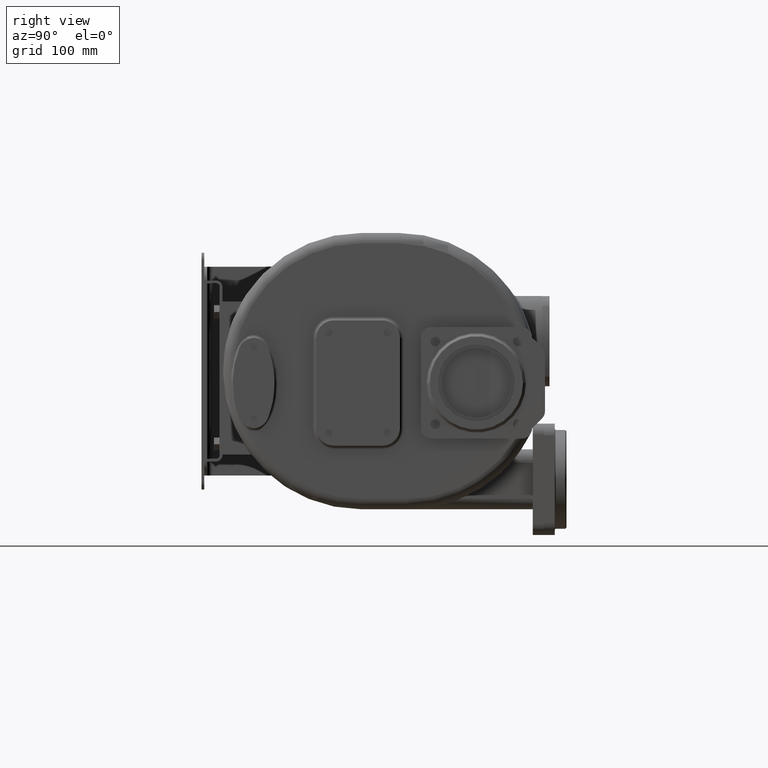
[diagram: clean part render]
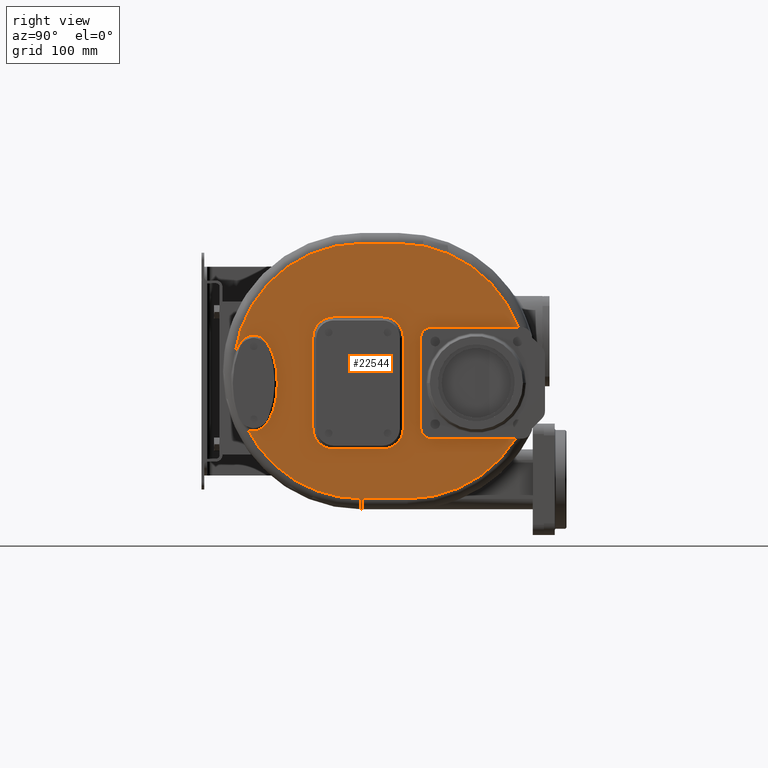
[diagram: same view with one face highlighted and labeled with its STEP entity id]
A machine part, right view. The second image highlights one B-rep face of the part: STEP entity #22544.
In plain terms, the highlighted planar face has unit normal (-1, 0, 0).
Its self-contained STEP definition (entity closure, byte-faithful):
#698=CARTESIAN_POINT('',(1.850000005377E2,3.625590009268E1,-8.380700360577E1));
#699=CARTESIAN_POINT('',(1.850000010474E2,3.644233185227E1,-8.390271979171E1));
#700=CARTESIAN_POINT('',(1.849999995139E2,3.681483443033E1,-8.408726570567E1));
#701=CARTESIAN_POINT('',(1.850000001302E2,3.737236600912E1,-8.434382731485E1));
#702=CARTESIAN_POINT('',(1.849999999651E2,3.792832459514E1,-8.458042790233E1));
#703=CARTESIAN_POINT('',(1.850000000094E2,3.848249259829E1,-8.479738974309E1));
#704=CARTESIAN_POINT('',(1.849999999974E2,3.903461455280E1,-8.499507185047E1));
#705=CARTESIAN_POINT('',(1.850000000009E2,3.958443812879E1,-8.517385338332E1));
#706=CARTESIAN_POINT('',(1.849999999989E2,4.013180420925E1,-8.533409415977E1));
#707=CARTESIAN_POINT('',(1.850000000034E2,4.067731638974E1,-8.547632499711E1));
#708=CARTESIAN_POINT('',(1.849999999877E2,4.122150457814E1,-8.560105536925E1));
#709=CARTESIAN_POINT('',(1.850000000460E2,4.176510983590E1,-8.570868341523E1));
#710=CARTESIAN_POINT('',(1.849999998283E2,4.230805306893E1,-8.579930381958E1));
#711=CARTESIAN_POINT('',(1.850000006406E2,4.284993283136E1,-8.587303444513E1));
#712=CARTESIAN_POINT('',(1.849999976092E2,4.339042353394E1,-8.593007338048E1));
#713=CARTESIAN_POINT('',(1.850000089227E2,4.392919762085E1,-8.597058278401E1));
#714=CARTESIAN_POINT('',(1.849999666999E2,4.446599704520E1,-8.599466012178E1));
#715=CARTESIAN_POINT('',(1.850000717517E2,4.482225118187E1,-8.599999905024E1));
#716=CARTESIAN_POINT('',(1.850000711929E2,4.499999992839E1,-8.599999999620E1));
#718=CARTESIAN_POINT('',(1.850000711929E2,4.499999992839E1,-8.599999999620E1));
#719=CARTESIAN_POINT('',(1.850001252122E2,4.518950684331E1,-8.599989870260E1));
#720=CARTESIAN_POINT('',(1.849999418888E2,4.556946980294E1,-8.599322555239E1));
#721=CARTESIAN_POINT('',(1.850000155708E2,4.614285532402E1,-8.596554469983E1));
#722=CARTESIAN_POINT('',(1.849999958278E2,4.671790287241E1,-8.591921490160E1));
#723=CARTESIAN_POINT('',(1.850000011179E2,4.729342825618E1,-8.585447501856E1));
#724=CARTESIAN_POINT('',(1.849999997004E2,4.786819630356E1,-8.577130638975E1));
#725=CARTESIAN_POINT('',(1.850000000803E2,4.844056075272E1,-8.566993653368E1));
#726=CARTESIAN_POINT('',(1.849999999785E2,4.901154720405E1,-8.555009547117E1));
#727=CARTESIAN_POINT('',(1.850000000058E2,4.958341881687E1,-8.541092378018E1));
#728=CARTESIAN_POINT('',(1.849999999985E2,5.015822642245E1,-8.525168364917E1));
#729=CARTESIAN_POINT('',(1.850000000004E2,5.073614453723E1,-8.507193670991E1));
#730=CARTESIAN_POINT('',(1.849999999999E2,5.131729604752E1,-8.487119471345E1));
#731=CARTESIAN_POINT('',(1.85E2,5.190171732239E1,-8.464891730547E1));
#732=CARTESIAN_POINT('',(1.85E2,5.248934587449E1,-8.440452518904E1));
#733=CARTESIAN_POINT('',(1.85E2,5.307995156450E1,-8.413744288156E1));
#734=CARTESIAN_POINT('',(1.85E2,5.367325762158E1,-8.384703677398E1));
#735=CARTESIAN_POINT('',(1.85E2,5.426876653845E1,-8.353276263190E1));
#736=CARTESIAN_POINT('',(1.85E2,5.486700629484E1,-8.319367839178E1));
#737=CARTESIAN_POINT('',(1.85E2,5.546920099925E1,-8.282824995882E1));
#738=CARTESIAN_POINT('',(1.85E2,5.607631298691E1,-8.243486265218E1));
#739=CARTESIAN_POINT('',(1.85E2,5.668876844080E1,-8.201204680469E1));
#740=CARTESIAN_POINT('',(1.85E2,5.730606315073E1,-8.155888062092E1));
#741=CARTESIAN_POINT('',(1.85E2,5.792760292688E1,-8.107452987500E1));
#742=CARTESIAN_POINT('',(1.85E2,5.855335905495E1,-8.055758564383E1));
#743=CARTESIAN_POINT('',(1.85E2,5.918397150765E1,-8.000596171991E1));
#744=CARTESIAN_POINT('',(1.85E2,5.981972614713E1,-7.941770282844E1));
#745=CARTESIAN_POINT('',(1.85E2,6.046065919755E1,-7.879100216395E1));
#746=CARTESIAN_POINT('',(1.85E2,6.110666118275E1,-7.812406059830E1));
#747=CARTESIAN_POINT('',(1.85E2,6.175767607498E1,-7.741461600119E1));
#748=CARTESIAN_POINT('',(1.85E2,6.241353893448E1,-7.666046138290E1));
#749=CARTESIAN_POINT('',(1.85E2,6.307392394965E1,-7.585961432962E1));
#750=CARTESIAN_POINT('',(1.85E2,6.373847933698E1,-7.500974785608E1));
#751=CARTESIAN_POINT('',(1.85E2,6.440694003495E1,-7.410809943113E1));
#752=CARTESIAN_POINT('',(1.85E2,6.507891382813E1,-7.315217800947E1));
#753=CARTESIAN_POINT('',(1.85E2,6.575381821424E1,-7.213940442307E1));
#754=CARTESIAN_POINT('',(1.85E2,6.643084945217E1,-7.106700698512E1));
#755=CARTESIAN_POINT('',(1.85E2,6.710919631253E1,-6.993251973891E1));
#756=CARTESIAN_POINT('',(1.85E2,6.778781744856E1,-6.873333426582E1));
#757=CARTESIAN_POINT('',(1.85E2,6.846552408881E1,-6.746676728806E1));
#758=CARTESIAN_POINT('',(1.85E2,6.914112449358E1,-6.613040379644E1));
#759=CARTESIAN_POINT('',(1.85E2,6.981299159798E1,-6.472181303130E1));
#760=CARTESIAN_POINT('',(1.85E2,7.047960206289E1,-6.323881832511E1));
#761=CARTESIAN_POINT('',(1.85E2,7.113901559639E1,-6.167942909323E1));
#762=CARTESIAN_POINT('',(1.85E2,7.178934349214E1,-6.004185513991E1));
#763=CARTESIAN_POINT('',(1.85E2,7.242830233693E1,-5.832477658584E1));
#764=CARTESIAN_POINT('',(1.85E2,7.305364066987E1,-5.652714015464E1));
#765=CARTESIAN_POINT('',(1.85E2,7.366275183164E1,-5.464849392524E1));
#766=CARTESIAN_POINT('',(1.85E2,7.425312341134E1,-5.268866940943E1));
#767=CARTESIAN_POINT('',(1.85E2,7.482187926457E1,-5.064830980052E1));
#768=CARTESIAN_POINT('',(1.85E2,7.536633102629E1,-4.852833233359E1));
#769=CARTESIAN_POINT('',(1.85E2,7.588342740316E1,-4.633073034330E1));
#770=CARTESIAN_POINT('',(1.85E2,7.637040060691E1,-4.405772228374E1));
#771=CARTESIAN_POINT('',(1.85E2,7.682419360171E1,-4.171279891077E1));
#772=CARTESIAN_POINT('',(1.85E2,7.724207719205E1,-3.929961601283E1));
#773=CARTESIAN_POINT('',(1.85E2,7.762121705471E1,-3.682316573896E1));
#774=CARTESIAN_POINT('',(1.85E2,7.795902742657E1,-3.428871071122E1));
#775=CARTESIAN_POINT('',(1.85E2,7.825316915739E1,-3.170247622063E1));
#776=CARTESIAN_POINT('',(1.85E2,7.850134511008E1,-2.907135330018E1));
#777=CARTESIAN_POINT('',(1.85E2,7.870187448035E1,-2.640248987455E1));
#778=CARTESIAN_POINT('',(1.85E2,7.885304046993E1,-2.370409072312E1));
#779=CARTESIAN_POINT('',(1.85E2,7.895375342613E1,-2.098425461856E1));
#780=CARTESIAN_POINT('',(1.85E2,7.900324092879E1,-1.825168290558E1));
#781=CARTESIAN_POINT('',(1.85E2,7.900098781827E1,-1.551523666799E1));
#782=CARTESIAN_POINT('',(1.85E2,7.894719500861E1,-1.278374435512E1));
#783=CARTESIAN_POINT('',(1.85E2,7.884216264602E1,-1.006591450731E1));
#784=CARTESIAN_POINT('',(1.85E2,7.868676166932E1,-7.370535469734E0));
#785=CARTESIAN_POINT('',(1.85E2,7.848232314442E1,-4.705716672129E0));
#786=CARTESIAN_POINT('',(1.85E2,7.823023659222E1,-2.079207344545E0));
#787=CARTESIAN_POINT('',(1.85E2,7.793259805944E1,5.013647148972E-1));
#788=CARTESIAN_POINT('',(1.85E2,7.759147194115E1,3.029710909365E0));
#789=CARTESIAN_POINT('',(1.85E2,7.720928791931E1,5.499405603073E0));
#790=CARTESIAN_POINT('',(1.85E2,7.678876281844E1,7.905282605819E0));
#791=CARTESIAN_POINT('',(1.85E2,7.633249191919E1,1.024269332079E1));
#792=CARTESIAN_POINT('',(1.85E2,7.584353498817E1,1.250762699480E1));
#793=CARTESIAN_POINT('',(1.85E2,7.532460537244E1,1.469717380367E1));
#794=CARTESIAN_POINT('',(1.85E2,7.477880358759E1,1.680869239518E1));
#795=CARTESIAN_POINT('',(1.85E2,7.420886448877E1,1.884072404745E1));
#796=CARTESIAN_POINT('',(1.85E2,7.361774827512E1,2.079201015275E1));
#797=CARTESIAN_POINT('',(1.85E2,7.300807439108E1,2.266228769933E1));
#798=CARTESIAN_POINT('',(1.85E2,7.238256612715E1,2.445151260150E1));
#799=CARTESIAN_POINT('',(1.85E2,7.174360569278E1,2.616041002525E1));
#800=CARTESIAN_POINT('',(1.85E2,7.109361378832E1,2.778992212320E1));
#801=CARTESIAN_POINT('',(1.85E2,7.043467186250E1,2.934152890162E1));
#802=CARTESIAN_POINT('',(1.85E2,6.976885832766E1,3.081689665170E1));
#803=CARTESIAN_POINT('',(1.85E2,6.909792427296E1,3.221809702129E1));
#804=CARTESIAN_POINT('',(1.85E2,6.842354274433E1,3.354729396418E1));
#805=CARTESIAN_POINT('',(1.85E2,6.774721054479E1,3.480693316483E1));
#806=CARTESIAN_POINT('',(1.85E2,6.707015733650E1,3.599941680132E1));
#807=CARTESIAN_POINT('',(1.85E2,6.639364343639E1,3.712746266736E1));
#808=CARTESIAN_POINT('',(1.85E2,6.571853002673E1,3.819364170201E1));
#809=CARTESIAN_POINT('',(1.85E2,6.504561792590E1,3.920068128407E1));
#810=CARTESIAN_POINT('',(1.85E2,6.437568578852E1,4.015133665570E1));
#811=CARTESIAN_POINT('',(1.85E2,6.370916111379E1,4.104814521698E1));
#812=CARTESIAN_POINT('',(1.85E2,6.304638184767E1,4.189380253273E1));
#813=CARTESIAN_POINT('',(1.85E2,6.238783783456E1,4.269077678348E1));
#814=CARTESIAN_POINT('',(1.85E2,6.173375724101E1,4.344131690342E1));
#815=CARTESIAN_POINT('',(1.85E2,6.108421512661E1,4.414777606723E1));
#816=CARTESIAN_POINT('',(1.85E2,6.043944642871E1,4.481230613829E1));
#817=CARTESIAN_POINT('',(1.85E2,5.979954639988E1,4.543685539750E1));
#818=CARTESIAN_POINT('',(1.85E2,5.916442836045E1,4.602341481491E1));
#819=CARTESIAN_POINT('',(1.85E2,5.853413008023E1,4.657381022052E1));
#820=CARTESIAN_POINT('',(1.85E2,5.790862846089E1,4.708970054215E1));
#821=CARTESIAN_POINT('',(1.85E2,5.728772460407E1,4.757274691636E1));
#822=CARTESIAN_POINT('',(1.85E2,5.667133613891E1,4.802443759764E1));
#823=CARTESIAN_POINT('',(1.85E2,5.605936994374E1,4.844613912642E1));
#824=CARTESIAN_POINT('',(1.85E2,5.545158233253E1,4.883919578085E1));
#825=CARTESIAN_POINT('',(1.85E2,5.484785081526E1,4.920476920419E1));
#826=CARTESIAN_POINT('',(1.85E2,5.424805552540E1,4.954395436310E1));
#827=CARTESIAN_POINT('',(1.85E2,5.365196738629E1,4.985780495307E1));
#828=CARTESIAN_POINT('',(1.85E2,5.305931618534E1,5.014728002577E1));
#829=CARTESIAN_POINT('',(1.85E2,5.246979983289E1,5.041331324403E1));
#830=CARTESIAN_POINT('',(1.85E2,5.188309189676E1,5.065672244706E1));
#831=CARTESIAN_POINT('',(1.849999999999E2,5.129915568915E1,5.087809952217E1));
#832=CARTESIAN_POINT('',(1.850000000002E2,5.071795471106E1,5.107808157176E1));
#833=CARTESIAN_POINT('',(1.849999999991E2,5.013934085642E1,5.125725583326E1));
#834=CARTESIAN_POINT('',(1.850000000033E2,4.956272474974E1,5.141620161068E1));
#835=CARTESIAN_POINT('',(1.849999999875E2,4.898758472486E1,5.155547560170E1));
#836=CARTESIAN_POINT('',(1.850000000466E2,4.841323091236E1,5.167556339485E1));
#837=CARTESIAN_POINT('',(1.849999998262E2,4.783983670476E1,5.177660684976E1));
#838=CARTESIAN_POINT('',(1.850000006485E2,4.726778398452E1,5.185873901405E1));
#839=CARTESIAN_POINT('',(1.849999975798E2,4.669741570136E1,5.192222837044E1));
#840=CARTESIAN_POINT('',(1.850000090325E2,4.612906037439E1,5.196729468082E1));
#841=CARTESIAN_POINT('',(1.849999662903E2,4.556296935055E1,5.199407075726E1));
#842=CARTESIAN_POINT('',(1.850000726344E2,4.518737295131E1,5.199999891831E1));
#843=CARTESIAN_POINT('',(1.850000719978E2,4.500000007358E1,5.199999999610E1));
#845=CARTESIAN_POINT('',(1.850000719978E2,4.500000007358E1,5.199999999610E1));
#846=CARTESIAN_POINT('',(1.850001267406E2,4.481104877648E1,5.199989710667E1));
#847=CARTESIAN_POINT('',(1.849999411795E2,4.443209167657E1,5.199324911120E1));
#848=CARTESIAN_POINT('',(1.850000157609E2,4.385983143286E1,5.196568575622E1));
#849=CARTESIAN_POINT('',(1.849999957769E2,4.328572785387E1,5.191952317161E1));
#850=CARTESIAN_POINT('',(1.850000011316E2,4.271109534493E1,5.185500713247E1));
#851=CARTESIAN_POINT('',(1.849999996968E2,4.213731854506E1,5.177213984082E1));
#852=CARTESIAN_POINT('',(1.850000000812E2,4.156618035811E1,5.167119011036E1));
#853=CARTESIAN_POINT('',(1.849999999782E2,4.099647119165E1,5.155188139042E1));
#854=CARTESIAN_POINT('',(1.850000000058E2,4.042593302348E1,5.141334805671E1));
#855=CARTESIAN_POINT('',(1.849999999984E2,3.985262508561E1,5.125487010647E1));
#856=CARTESIAN_POINT('',(1.850000000004E2,3.927632647611E1,5.107602296878E1));
#857=CARTESIAN_POINT('',(1.849999999999E2,3.869678735023E1,5.087628877304E1));
#858=CARTESIAN_POINT('',(1.85E2,3.811385592961E1,5.065508802725E1));
#859=CARTESIAN_POINT('',(1.85E2,3.752754232303E1,5.041181312395E1));
#860=CARTESIAN_POINT('',(1.85E2,3.693820782815E1,5.014593994828E1));
#861=CARTESIAN_POINT('',(1.85E2,3.634620210372E1,4.985688601010E1));
#862=CARTESIAN_POINT('',(1.85E2,3.575217335100E1,4.954418577109E1));
#863=CARTESIAN_POINT('',(1.85E2,3.515538192979E1,4.920678767335E1));
#864=CARTESIAN_POINT('',(1.85E2,3.455459162316E1,4.884315301035E1));
#865=CARTESIAN_POINT('',(1.85E2,3.394876887882E1,4.845161880231E1));
#866=CARTESIAN_POINT('',(1.85E2,3.333765505204E1,4.803082767401E1));
#867=CARTESIAN_POINT('',(1.85E2,3.272176433756E1,4.757988051193E1));
#868=CARTESIAN_POINT('',(1.85E2,3.210171542287E1,4.709799173881E1));
#869=CARTESIAN_POINT('',(1.85E2,3.147741630684E1,4.658368658378E1));
#870=CARTESIAN_POINT('',(1.85E2,3.084834757465E1,4.603497749444E1));
#871=CARTESIAN_POINT('',(1.85E2,3.021427767288E1,4.544998579026E1));
#872=CARTESIAN_POINT('',(1.85E2,2.957503325135E1,4.482678086557E1));
#873=CARTESIAN_POINT('',(1.85E2,2.893059157455E1,4.416347971534E1));
#874=CARTESIAN_POINT('',(1.85E2,2.828109530975E1,4.345792199950E1));
#875=CARTESIAN_POINT('',(1.85E2,2.76268049E1,4.270800238143E1));
#876=CARTESIAN_POINT('',(1.85E2,2.696814925223E1,4.191186811357E1));
#877=CARTESIAN_POINT('',(1.85E2,2.630540192496E1,4.106723291169E1));
#878=CARTESIAN_POINT('',(1.85E2,2.563881894602E1,4.017133731290E1));
#879=CARTESIAN_POINT('',(1.849999999998E2,2.496879187446E1,3.922167441618E1));
#880=CARTESIAN_POINT('',(1.850000000006E2,2.429586468350E1,3.821577892319E1));
#881=CARTESIAN_POINT('',(1.849999999978E2,2.362088801954E1,3.715098452631E1));
#882=CARTESIAN_POINT('',(1.850000000083E2,2.294474268941E1,3.602493122796E1));
#883=CARTESIAN_POINT('',(1.849999999692E2,2.226832437395E1,3.483503023584E1));
#884=CARTESIAN_POINT('',(1.850000001151E2,2.159273995515E1,3.357841062375E1));
#885=CARTESIAN_POINT('',(1.849999995706E2,2.091912409746E1,3.225263469886E1));
#886=CARTESIAN_POINT('',(1.850000016025E2,2.024922447930E1,3.085567739919E1));
#887=CARTESIAN_POINT('',(1.849999940194E2,1.958472336326E1,2.938571740279E1));
#888=CARTESIAN_POINT('',(1.850000223200E2,1.892733010295E1,2.784062397819E1));
#889=CARTESIAN_POINT('',(1.849999167007E2,1.827888125732E1,2.621846207342E1));
#890=CARTESIAN_POINT('',(1.850001794850E2,1.785375017846E1,2.508413205959E1));
#891=CARTESIAN_POINT('',(1.850001806549E2,1.764340803706E1,2.450367455748E1));
#893=CARTESIAN_POINT('',(1.85E2,1.995E2,0.E0));
#894=DIRECTION('',(1.E0,0.E0,0.E0));
#895=DIRECTION('',(0.E0,0.E0,1.E0));
#896=AXIS2_PLACEMENT_3D('',#893,#894,#895);
#898=DIRECTION('',(0.E0,-1.E0,0.E0));
#899=VECTOR('',#898,5.338915899923E1);
#900=CARTESIAN_POINT('',(1.85E2,2.528891589992E2,1.835E2));
#901=LINE('',#900,#899);
#902=CARTESIAN_POINT('',(1.85E2,2.528891589992E2,0.E0));
#903=DIRECTION('',(1.E0,0.E0,0.E0));
#904=DIRECTION('',(0.E0,9.392169392074E-1,3.433242506812E-1));
#905=AXIS2_PLACEMENT_3D('',#902,#903,#904);
#907=CARTESIAN_POINT('',(1.85E2,2.658407785106E2,0.E0));
#908=DIRECTION('',(1.E0,0.E0,0.E0));
#909=DIRECTION('',(0.E0,0.E0,-1.E0));
#910=AXIS2_PLACEMENT_3D('',#907,#908,#909);
#912=DIRECTION('',(0.E0,1.E0,0.E0));
#913=VECTOR('',#912,6.634077851062E1);
#914=CARTESIAN_POINT('',(1.85E2,1.995E2,-1.835E2));
#915=LINE('',#914,#913);
#916=CARTESIAN_POINT('',(1.85E2,1.995E2,0.E0));
#917=DIRECTION('',(1.E0,0.E0,0.E0));
#918=DIRECTION('',(0.E0,-8.896136235749E-1,-4.567139156517E-1));
#919=AXIS2_PLACEMENT_3D('',#916,#917,#918);
#921=DIRECTION('',(0.E0,4.788839410549E-12,1.E0));
#922=VECTOR('',#921,1.299999999984E2);
#923=CARTESIAN_POINT('',(1.85E2,2.599999999989E2,-8.199999999904E1));
#924=LINE('',#923,#922);
#925=CARTESIAN_POINT('',(1.85E2,2.3E2,4.8E1));
#926=DIRECTION('',(1.E0,0.E0,0.E0));
#927=DIRECTION('',(0.E0,1.E0,0.E0));
#928=AXIS2_PLACEMENT_3D('',#925,#926,#927);
#930=DIRECTION('',(0.E0,-1.E0,8.894167942032E-12));
#931=VECTOR('',#930,6.999999999837E1);
#932=CARTESIAN_POINT('',(1.85E2,2.299999999990E2,7.799999999892E1));
#933=LINE('',#932,#931);
#934=CARTESIAN_POINT('',(1.85E2,1.6E2,4.8E1));
#935=DIRECTION('',(1.E0,0.E0,0.E0));
#936=DIRECTION('',(0.E0,0.E0,1.E0));
#937=AXIS2_PLACEMENT_3D('',#934,#935,#936);
#939=DIRECTION('',(0.E0,-4.789058039083E-12,-1.E0));
#940=VECTOR('',#939,1.299999999984E2);
#941=CARTESIAN_POINT('',(1.85E2,1.300000000011E2,4.799999999904E1));
#942=LINE('',#941,#940);
#943=CARTESIAN_POINT('',(1.85E2,1.6E2,-8.2E1));
#944=DIRECTION('',(1.E0,0.E0,0.E0));
#945=DIRECTION('',(0.E0,-1.E0,0.E0));
#946=AXIS2_PLACEMENT_3D('',#943,#944,#945);
#948=DIRECTION('',(0.E0,1.E0,-8.894167942032E-12));
#949=VECTOR('',#948,6.999999999837E1);
#950=CARTESIAN_POINT('',(1.85E2,1.600000000010E2,-1.119999999989E2));
#951=LINE('',#950,#949);
#952=CARTESIAN_POINT('',(1.85E2,2.3E2,-8.2E1));
#953=DIRECTION('',(1.E0,0.E0,0.E0));
#954=DIRECTION('',(0.E0,0.E0,-1.E0));
#955=AXIS2_PLACEMENT_3D('',#952,#953,#954);
#1000=CARTESIAN_POINT('',(1.850001806549E2,1.764340803706E1,2.450367455748E1));
#1376=DIRECTION('',(0.E0,1.E0,0.E0));
#1377=VECTOR('',#1376,1.216074309109E2);
#1378=CARTESIAN_POINT('',(1.85E2,3.E2,-9.7E1));
#1379=LINE('',#1378,#1377);
#1599=DIRECTION('',(0.E0,0.E0,-1.E0));
#1600=VECTOR('',#1599,1.3E2);
#1601=CARTESIAN_POINT('',(1.85E2,2.85E2,4.8E1));
#1602=LINE('',#1601,#1600);
#1607=CARTESIAN_POINT('',(1.85E2,3.E2,-8.2E1));
#1608=DIRECTION('',(-1.E0,0.E0,0.E0));
#1609=DIRECTION('',(0.E0,0.E0,-1.E0));
#1610=AXIS2_PLACEMENT_3D('',#1607,#1608,#1609);
#1612=CARTESIAN_POINT('',(1.85E2,3.E2,4.8E1));
#1613=DIRECTION('',(-1.E0,0.E0,0.E0));
#1614=DIRECTION('',(0.E0,-1.E0,0.E0));
#1615=AXIS2_PLACEMENT_3D('',#1612,#1613,#1614);
#1621=DIRECTION('',(0.E0,-1.E0,0.E0));
#1622=VECTOR('',#1621,1.252354673438E2);
#1623=CARTESIAN_POINT('',(1.85E2,4.252354673438E2,6.3E1));
#1624=LINE('',#1623,#1622);
#18950=CARTESIAN_POINT('',(1.85E2,2.85E2,4.8E1));
#18951=CARTESIAN_POINT('',(1.85E2,2.85E2,-8.2E1));
#18952=VERTEX_POINT('',#18950);
#18953=VERTEX_POINT('',#18951);
#18954=CARTESIAN_POINT('',(1.85E2,3.E2,-9.7E1));
#18955=VERTEX_POINT('',#18954);
#18956=CARTESIAN_POINT('',(1.85E2,3.E2,6.3E1));
#18957=VERTEX_POINT('',#18956);
#18970=CARTESIAN_POINT('',(1.85E2,2.658407785106E2,-1.835E2));
#18971=CARTESIAN_POINT('',(1.85E2,4.216074309109E2,-9.7E1));
#18972=VERTEX_POINT('',#18970);
#18973=VERTEX_POINT('',#18971);
#18974=CARTESIAN_POINT('',(1.85E2,1.995E2,-1.835E2));
#18975=VERTEX_POINT('',#18974);
#18980=CARTESIAN_POINT('',(1.85E2,2.528891589992E2,1.835E2));
#18981=CARTESIAN_POINT('',(1.85E2,1.995E2,1.835E2));
#18982=VERTEX_POINT('',#18980);
#18983=VERTEX_POINT('',#18981);
#18986=CARTESIAN_POINT('',(1.85E2,4.252354673438E2,6.3E1));
#18987=VERTEX_POINT('',#18986);
#19046=VERTEX_POINT('',#698);
#19047=VERTEX_POINT('',#716);
#19049=VERTEX_POINT('',#843);
#19050=VERTEX_POINT('',#1000);
#19059=CARTESIAN_POINT('',(1.85E2,2.599999999989E2,-8.199999999904E1));
#19060=CARTESIAN_POINT('',(1.85E2,2.599999999995E2,4.799999999933E1));
#19061=VERTEX_POINT('',#19059);
#19062=VERTEX_POINT('',#19060);
#19063=CARTESIAN_POINT('',(1.85E2,2.3E2,7.8E1));
#19064=VERTEX_POINT('',#19063);
#19067=CARTESIAN_POINT('',(1.85E2,1.600000000007E2,7.799999999954E1));
#19068=VERTEX_POINT('',#19067);
#19071=CARTESIAN_POINT('',(1.85E2,1.3E2,4.8E1));
#19072=VERTEX_POINT('',#19071);
#19075=CARTESIAN_POINT('',(1.85E2,1.300000000005E2,-8.199999999933E1));
#19076=VERTEX_POINT('',#19075);
#19079=CARTESIAN_POINT('',(1.85E2,2.3E2,-1.12E2));
#19080=VERTEX_POINT('',#19079);
#19083=CARTESIAN_POINT('',(1.85E2,1.600000000010E2,-1.119999999989E2));
#19084=VERTEX_POINT('',#19083);
#22493=CARTESIAN_POINT('',(1.85E2,2.E2,0.E0));
#22494=DIRECTION('',(-1.E0,0.E0,0.E0));
#22495=DIRECTION('',(0.E0,0.E0,1.E0));
#22496=AXIS2_PLACEMENT_3D('',#22493,#22494,#22495);
#22497=PLANE('',#22496);
#22499=ORIENTED_EDGE('',*,*,#22498,.T.);
#22501=ORIENTED_EDGE('',*,*,#22500,.T.);
#22503=ORIENTED_EDGE('',*,*,#22502,.T.);
#22505=ORIENTED_EDGE('',*,*,#22504,.F.);
#22507=ORIENTED_EDGE('',*,*,#22506,.F.);
#22509=ORIENTED_EDGE('',*,*,#22508,.F.);
#22511=ORIENTED_EDGE('',*,*,#22510,.T.);
#22513=ORIENTED_EDGE('',*,*,#22512,.F.);
#22515=ORIENTED_EDGE('',*,*,#22514,.T.);
#22517=ORIENTED_EDGE('',*,*,#22516,.F.);
#22519=ORIENTED_EDGE('',*,*,#22518,.T.);
#22520=ORIENTED_EDGE('',*,*,#22470,.F.);
#22521=ORIENTED_EDGE('',*,*,#22484,.F.);
#22523=ORIENTED_EDGE('',*,*,#22522,.F.);
#22524=EDGE_LOOP('',(#22499,#22501,#22503,#22505,#22507,#22509,#22511,#22513,
#22515,#22517,#22519,#22520,#22521,#22523));
#22525=FACE_OUTER_BOUND('',#22524,.F.);
#22527=ORIENTED_EDGE('',*,*,#22526,.T.);
#22529=ORIENTED_EDGE('',*,*,#22528,.T.);
#22531=ORIENTED_EDGE('',*,*,#22530,.T.);
#22533=ORIENTED_EDGE('',*,*,#22532,.T.);
#22535=ORIENTED_EDGE('',*,*,#22534,.T.);
#22537=ORIENTED_EDGE('',*,*,#22536,.T.);
#22539=ORIENTED_EDGE('',*,*,#22538,.T.);
#22541=ORIENTED_EDGE('',*,*,#22540,.T.);
#22542=EDGE_LOOP('',(#22527,#22529,#22531,#22533,#22535,#22537,#22539,#22541));
#22543=FACE_BOUND('',#22542,.F.);
#22544=ADVANCED_FACE('',(#22525,#22543),#22497,.F.);
#717=B_SPLINE_CURVE_WITH_KNOTS('',3,(#698,#699,#700,#701,#702,#703,#704,#705,
#706,#707,#708,#709,#710,#711,#712,#713,#714,#715,#716),.UNSPECIFIED.,.F.,.F.,
(4,1,1,1,1,1,1,1,1,1,1,1,1,1,1,1,4),(0.E0,6.25E-2,1.25E-1,1.875E-1,2.5E-1,
3.125E-1,3.75E-1,4.375E-1,5.E-1,5.625E-1,6.25E-1,6.875E-1,7.5E-1,8.125E-1,
8.75E-1,9.375E-1,1.E0),.UNSPECIFIED.);
#844=B_SPLINE_CURVE_WITH_KNOTS('',3,(#718,#719,#720,#721,#722,#723,#724,#725,
#726,#727,#728,#729,#730,#731,#732,#733,#734,#735,#736,#737,#738,#739,#740,#741,
#742,#743,#744,#745,#746,#747,#748,#749,#750,#751,#752,#753,#754,#755,#756,#757,
#758,#759,#760,#761,#762,#763,#764,#765,#766,#767,#768,#769,#770,#771,#772,#773,
#774,#775,#776,#777,#778,#779,#780,#781,#782,#783,#784,#785,#786,#787,#788,#789,
#790,#791,#792,#793,#794,#795,#796,#797,#798,#799,#800,#801,#802,#803,#804,#805,
#806,#807,#808,#809,#810,#811,#812,#813,#814,#815,#816,#817,#818,#819,#820,#821,
#822,#823,#824,#825,#826,#827,#828,#829,#830,#831,#832,#833,#834,#835,#836,#837,
#838,#839,#840,#841,#842,#843),.UNSPECIFIED.,.F.,.F.,(4,1,1,1,1,1,1,1,1,1,1,1,1,
1,1,1,1,1,1,1,1,1,1,1,1,1,1,1,1,1,1,1,1,1,1,1,1,1,1,1,1,1,1,1,1,1,1,1,1,1,1,1,1,
1,1,1,1,1,1,1,1,1,1,1,1,1,1,1,1,1,1,1,1,1,1,1,1,1,1,1,1,1,1,1,1,1,1,1,1,1,1,1,1,
1,1,1,1,1,1,1,1,1,1,1,1,1,1,1,1,1,1,1,1,1,1,1,1,1,1,1,1,1,1,4),(0.E0,
8.130081300813E-3,1.626016260163E-2,2.439024390244E-2,3.252032520325E-2,
4.065040650407E-2,4.878048780488E-2,5.691056910569E-2,6.504065040650E-2,
7.317073170732E-2,8.130081300813E-2,8.943089430894E-2,9.756097560976E-2,
1.056910569106E-1,1.138211382114E-1,1.219512195122E-1,1.300813008130E-1,
1.382113821138E-1,1.463414634146E-1,1.544715447154E-1,1.626016260163E-1,
1.707317073171E-1,1.788617886179E-1,1.869918699187E-1,1.951219512195E-1,
2.032520325203E-1,2.113821138211E-1,2.195121951220E-1,2.276422764228E-1,
2.357723577236E-1,2.439024390244E-1,2.520325203252E-1,2.601626016260E-1,
2.682926829268E-1,2.764227642276E-1,2.845528455285E-1,2.926829268293E-1,
3.008130081301E-1,3.089430894309E-1,3.170731707317E-1,3.252032520325E-1,
3.333333333333E-1,3.414634146341E-1,3.495934959350E-1,3.577235772358E-1,
3.658536585366E-1,3.739837398374E-1,3.821138211382E-1,3.902439024390E-1,
3.983739837398E-1,4.065040650407E-1,4.146341463415E-1,4.227642276423E-1,
4.308943089431E-1,4.390243902439E-1,4.471544715447E-1,4.552845528455E-1,
4.634146341463E-1,4.715447154472E-1,4.796747967480E-1,4.878048780488E-1,
4.959349593496E-1,5.040650406504E-1,5.121951219512E-1,5.203252032520E-1,
5.284552845528E-1,5.365853658537E-1,5.447154471545E-1,5.528455284553E-1,
5.609756097561E-1,5.691056910569E-1,5.772357723577E-1,5.853658536585E-1,
5.934959349593E-1,6.016260162602E-1,6.097560975610E-1,6.178861788618E-1,
6.260162601626E-1,6.341463414634E-1,6.422764227642E-1,6.504065040650E-1,
6.585365853659E-1,6.666666666667E-1,6.747967479675E-1,6.829268292683E-1,
6.910569105691E-1,6.991869918699E-1,7.073170731707E-1,7.154471544715E-1,
7.235772357724E-1,7.317073170732E-1,7.398373983740E-1,7.479674796748E-1,
7.560975609756E-1,7.642276422764E-1,7.723577235772E-1,7.804878048780E-1,
7.886178861789E-1,7.967479674797E-1,8.048780487805E-1,8.130081300813E-1,
8.211382113821E-1,8.292682926829E-1,8.373983739837E-1,8.455284552846E-1,
8.536585365854E-1,8.617886178862E-1,8.699186991870E-1,8.780487804878E-1,
8.861788617886E-1,8.943089430894E-1,9.024390243902E-1,9.105691056911E-1,
9.186991869919E-1,9.268292682927E-1,9.349593495935E-1,9.430894308943E-1,
9.512195121951E-1,9.593495934959E-1,9.674796747967E-1,9.756097560976E-1,
9.837398373984E-1,9.918699186992E-1,1.E0),.UNSPECIFIED.);
#892=B_SPLINE_CURVE_WITH_KNOTS('',3,(#845,#846,#847,#848,#849,#850,#851,#852,
#853,#854,#855,#856,#857,#858,#859,#860,#861,#862,#863,#864,#865,#866,#867,#868,
#869,#870,#871,#872,#873,#874,#875,#876,#877,#878,#879,#880,#881,#882,#883,#884,
#885,#886,#887,#888,#889,#890,#891),.UNSPECIFIED.,.F.,.F.,(4,1,1,1,1,1,1,1,1,1,
1,1,1,1,1,1,1,1,1,1,1,1,1,1,1,1,1,1,1,1,1,1,1,1,1,1,1,1,1,1,1,1,1,1,4),(0.E0,
2.272727272727E-2,4.545454545455E-2,6.818181818182E-2,9.090909090909E-2,
1.136363636364E-1,1.363636363636E-1,1.590909090909E-1,1.818181818182E-1,
2.045454545455E-1,2.272727272727E-1,2.5E-1,2.727272727273E-1,2.954545454545E-1,
3.181818181818E-1,3.409090909091E-1,3.636363636364E-1,3.863636363636E-1,
4.090909090909E-1,4.318181818182E-1,4.545454545455E-1,4.772727272727E-1,5.E-1,
5.227272727273E-1,5.454545454545E-1,5.681818181818E-1,5.909090909091E-1,
6.136363636364E-1,6.363636363636E-1,6.590909090909E-1,6.818181818182E-1,
7.045454545455E-1,7.272727272727E-1,7.5E-1,7.727272727273E-1,7.954545454545E-1,
8.181818181818E-1,8.409090909091E-1,8.636363636364E-1,8.863636363636E-1,
9.090909090909E-1,9.318181818182E-1,9.545454545455E-1,9.772727272727E-1,1.E0),
.UNSPECIFIED.);
#897=CIRCLE('',#896,1.835E2);
#906=CIRCLE('',#905,1.835E2);
#911=CIRCLE('',#910,1.835E2);
#920=CIRCLE('',#919,1.835E2);
#929=CIRCLE('',#928,3.E1);
#938=CIRCLE('',#937,3.E1);
#947=CIRCLE('',#946,3.E1);
#956=CIRCLE('',#955,3.E1);
#1611=CIRCLE('',#1610,1.5E1);
#1616=CIRCLE('',#1615,1.5E1);
#22470=EDGE_CURVE('',#18972,#18973,#911,.T.);
#22484=EDGE_CURVE('',#18975,#18972,#915,.T.);
#22498=EDGE_CURVE('',#19046,#19047,#717,.T.);
#22500=EDGE_CURVE('',#19047,#19049,#844,.T.);
#22502=EDGE_CURVE('',#19049,#19050,#892,.T.);
#22504=EDGE_CURVE('',#18983,#19050,#897,.T.);
#22506=EDGE_CURVE('',#18982,#18983,#901,.T.);
#22508=EDGE_CURVE('',#18987,#18982,#906,.T.);
#22510=EDGE_CURVE('',#18987,#18957,#1624,.T.);
#22512=EDGE_CURVE('',#18952,#18957,#1616,.T.);
#22514=EDGE_CURVE('',#18952,#18953,#1602,.T.);
#22516=EDGE_CURVE('',#18955,#18953,#1611,.T.);
#22518=EDGE_CURVE('',#18955,#18973,#1379,.T.);
#22522=EDGE_CURVE('',#19046,#18975,#920,.T.);
#22526=EDGE_CURVE('',#19061,#19062,#924,.T.);
#22528=EDGE_CURVE('',#19062,#19064,#929,.T.);
#22530=EDGE_CURVE('',#19064,#19068,#933,.T.);
#22532=EDGE_CURVE('',#19068,#19072,#938,.T.);
#22534=EDGE_CURVE('',#19072,#19076,#942,.T.);
#22536=EDGE_CURVE('',#19076,#19084,#947,.T.);
#22538=EDGE_CURVE('',#19084,#19080,#951,.T.);
#22540=EDGE_CURVE('',#19080,#19061,#956,.T.);